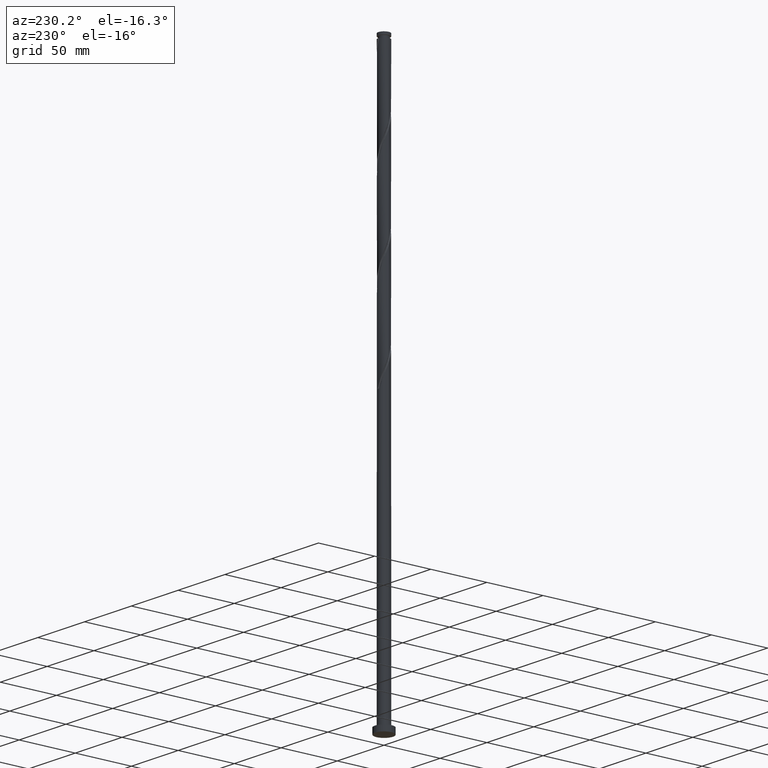
[diagram: clean part render]
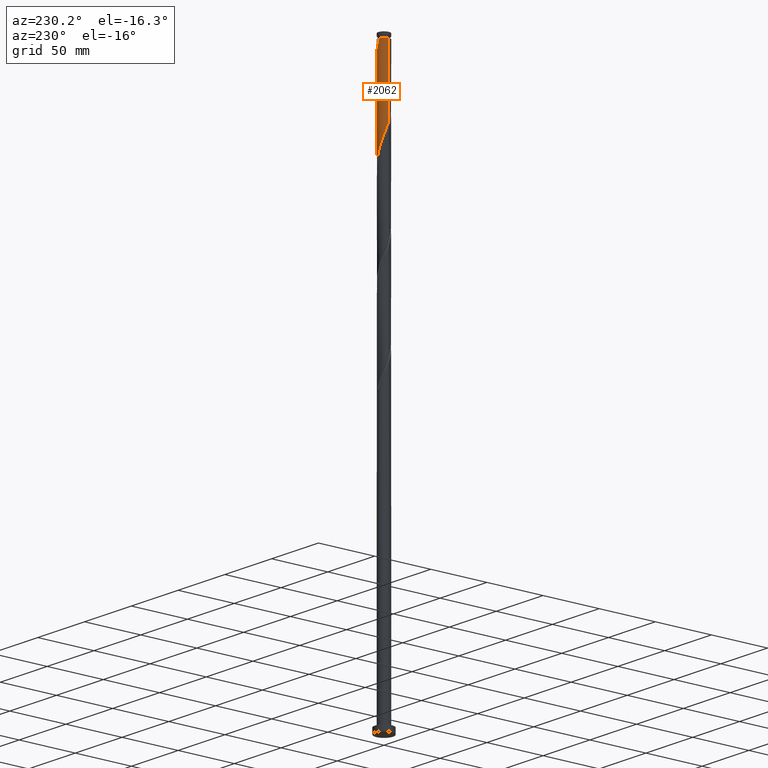
[diagram: same view with one face highlighted and labeled with its STEP entity id]
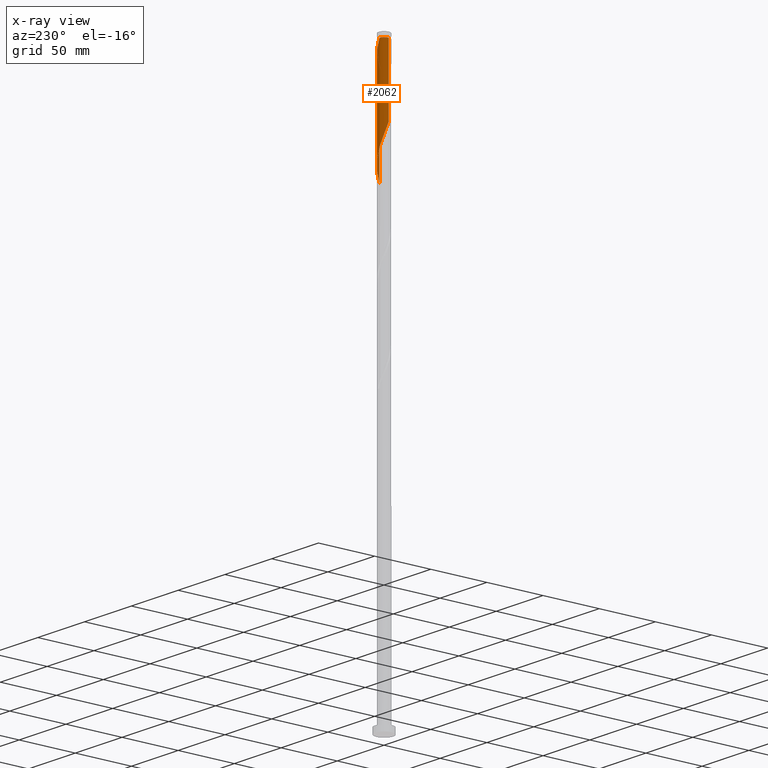
[diagram: x-ray of the same camera — body ghosted, the highlighted face saturated]
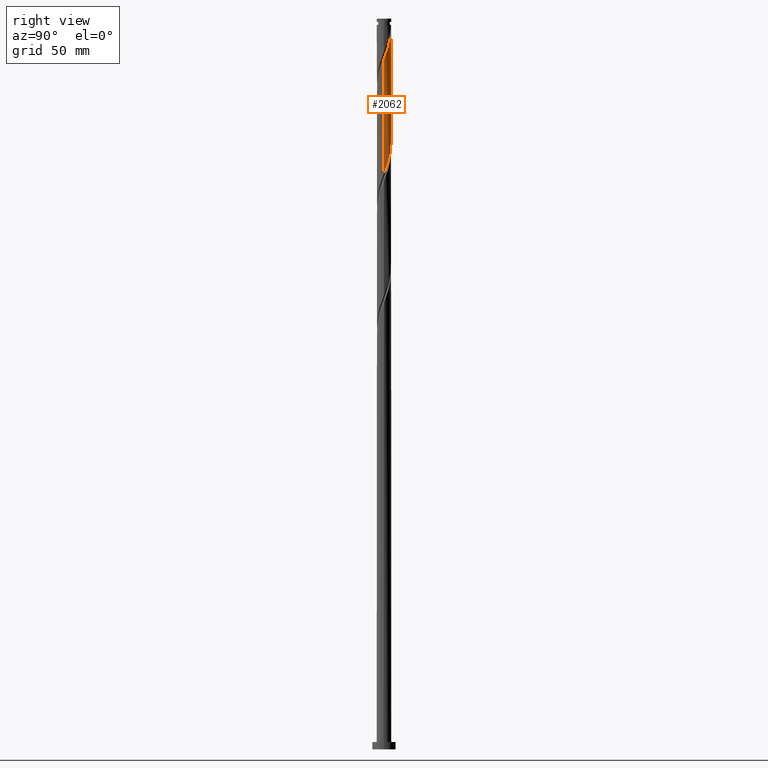
[diagram: same view with one face highlighted and labeled with its STEP entity id]
A machine part, auxiliary view. The second image highlights one B-rep face of the part: STEP entity #2062.
The next image is the same camera in x-ray: the body ghosted, the highlighted face saturated — about 0% of this face is hidden behind the body in this view.
A second angle (right view) of the same face is appended — the face is thin or edge-on in the first view.
In plain terms, the highlighted cylindrical surface (edge-blend (fillet) strip) has radius 5 mm, axis along (-0, -0, -1).
Its self-contained STEP definition (entity closure, byte-faithful):
#8 = DIRECTION ( 'NONE',  ( -0.000000000000000000, -0.000000000000000000, -1.000000000000000000 ) ) ;
#17 = CARTESIAN_POINT ( 'NONE',  ( 2.761260863840569790, 4.168385591787605371, 485.3114236022321393 ) ) ;
#41 = CARTESIAN_POINT ( 'NONE',  ( -4.999960293482964779, 0.01992645462128600845, 435.8322569355656810 ) ) ;
#58 = EDGE_CURVE ( 'NONE', #672, #336, #2003, .T. ) ;
#113 = CARTESIAN_POINT ( 'NONE',  ( -3.521415697997567040, 3.549595960373002068, 425.4155902688989386 ) ) ;
#143 = CARTESIAN_POINT ( 'NONE',  ( 4.146244501713201913, 2.794397346837617313, 480.1030902688988249 ) ) ;
#175 = CARTESIAN_POINT ( 'NONE',  ( 3.171811010509511863, 3.896425134272734514, 484.0093402688988817 ) ) ;
#190 = CARTESIAN_POINT ( 'NONE',  ( -4.997997709003380251, 0.5123795606565213490, 434.5301736022321393 ) ) ;
#232 = VERTEX_POINT ( 'NONE', #1247 ) ;
#245 = CARTESIAN_POINT ( 'NONE',  ( 1.477595313556730350, 4.802002290996620459, 411.0926736022322530 ) ) ;
#254 = CARTESIAN_POINT ( 'NONE',  ( 4.999960293482969220, 0.01992645462128285472, 472.2905902688987680 ) ) ;
#262 = CARTESIAN_POINT ( 'NONE',  ( 3.202766786473273175, 3.871020385485623549, 405.8843402688988249 ) ) ;
#264 = CARTESIAN_POINT ( 'NONE',  ( 5.000000000000002665, 2.143404433510405067E-15, 394.2182872468958408 ) ) ;
#336 = VERTEX_POINT ( 'NONE', #264 ) ;
#366 = ORIENTED_EDGE ( 'NONE', *, *, #1055, .F. ) ;
#368 = CARTESIAN_POINT ( 'NONE',  ( 5.000000000000006217, 2.277600189347564441E-15, 472.2378932909019227 ) ) ;
#409 = ORIENTED_EDGE ( 'NONE', *, *, #738, .F. ) ;
#419 = CARTESIAN_POINT ( 'NONE',  ( 2.794397346837616869, 4.146244501713196584, 407.1864236022322530 ) ) ;
#428 = CARTESIAN_POINT ( 'NONE',  ( 1.931811610379345234, 4.611735454468695927, 409.7905902688989954 ) ) ;
#440 = CARTESIAN_POINT ( 'NONE',  ( 4.907774916897412076, 0.9559002903402679108, 396.7697569355657379 ) ) ;
#463 = AXIS2_PLACEMENT_3D ( 'NONE', #1459, #8, #1301 ) ;
#469 = CARTESIAN_POINT ( 'NONE',  ( -0.9949874371066255163, 4.900000000000005684, 495.7280902688987112 ) ) ;
#513 = CARTESIAN_POINT ( 'NONE',  ( -5.000000000000002665, -1.548842681954040460E-15, 435.8849539135625832 ) ) ;
#537 = DIRECTION ( 'NONE',  ( -0.000000000000000000, -0.000000000000000000, -1.000000000000000000 ) ) ;
#543 = ORIENTED_EDGE ( 'NONE', *, *, #1122, .T. ) ;
#568 = CARTESIAN_POINT ( 'NONE',  ( 4.900000000000005684, 0.9949874371066259604, 474.8947569355654537 ) ) ;
#585 = CARTESIAN_POINT ( 'NONE',  ( 3.549595960373001180, 3.521415697997567040, 404.5822569355656242 ) ) ;
#594 = CARTESIAN_POINT ( 'NONE',  ( -3.171811010509507867, 3.896425134272730073, 424.1135069355655673 ) ) ;
#604 = CARTESIAN_POINT ( 'NONE',  ( -1.439273929266583041, 4.813626955832280174, 418.9051736022323098 ) ) ;
#623 = CARTESIAN_POINT ( 'NONE',  ( -0.5123795606565361149, 4.997997709003384692, 494.4260069355656242 ) ) ;
#653 = CYLINDRICAL_SURFACE ( 'NONE', #1589, 5.000000000000000888 ) ;
#672 = VERTEX_POINT ( 'NONE', #368 ) ;
#674 = CARTESIAN_POINT ( 'NONE',  ( -4.802002290996619571, 1.477595313556731682, 431.9260069355655105 ) ) ;
#727 = CARTESIAN_POINT ( 'NONE',  ( 2.386027907201954790, 4.421468617940769619, 408.4885069355655673 ) ) ;
#738 = EDGE_CURVE ( 'NONE', #1483, #336, #756, .T. ) ;
#741 = CARTESIAN_POINT ( 'NONE',  ( -5.000000000000000888, 0.000000000000000000, 500.0000000000000000 ) ) ;
#745 = CARTESIAN_POINT ( 'NONE',  ( -4.146244501713199249, 2.794397346837614204, 428.0197569355657379 ) ) ;
#756 =( BOUNDED_CURVE ( )  B_SPLINE_CURVE ( 2, ( #513, #1863, #41, #190, #831, #674, #1485, #1324, #745, #1722, #113, #594, #1227, #1246, #1875, #604, #1713, #766, #2058, #886, #1082, #245, #428, #727, #419, #262, #585, #1891, #1417, #757, #2049, #1568, #440, #1737, #1235 ),
 .UNSPECIFIED., .F., .T. ) 
 B_SPLINE_CURVE_WITH_KNOTS ( ( 3, 2, 2, 2, 2, 2, 2, 2, 2, 2, 2, 2, 2, 2, 2, 2, 2, 3 ),
 ( 0.4295286902180869282, 0.4296875000000000000, 0.4375000000000000000, 0.4453125000000000000, 0.4531250000000000000, 0.4609375000000000000, 0.4687500000000000000, 0.4765625000000000000, 0.4843750000000000000, 0.4921875000000000000, 0.5000000000000000000, 0.5078125000000000000, 0.5156250000000000000, 0.5234375000000000000, 0.5312500000000000000, 0.5390625000000000000, 0.5468750000000000000, 0.5545286902180870392 ),
 .UNSPECIFIED. ) 
 CURVE ( )  GEOMETRIC_REPRESENTATION_ITEM ( )  RATIONAL_B_SPLINE_CURVE ( ( 0.9089165573359504480, 0.9090019243628553181, 0.9090909090909472523, 0.9047133878838534704, 0.9090909090909472523, 0.9047133878838534704, 0.9090909090909472523, 0.9047133878838534704, 0.9090909090909472523, 0.9047133878838534704, 0.9090909090909472523, 0.9047133878838534704, 0.9090909090909472523, 0.9047133878838534704, 0.9090909090909472523, 0.9047133878838534704, 0.9090909090909472523, 0.9047133878838534704, 0.9090909090909472523, 0.9047133878838534704, 0.9090909090909472523, 0.9047133878838534704, 0.9090909090909472523, 0.9047133878838534704, 0.9090909090909472523, 0.9047133878838534704, 0.9090909090909472523, 0.9047133878838534704, 0.9090909090909472523, 0.9047133878838534704, 0.9090909090909472523, 0.9047133878838534704, 0.9090909090909472523, 0.9048023726119454047, 0.9089165573359504480 ) ) 
 REPRESENTATION_ITEM ( '' )  );
#757 = CARTESIAN_POINT ( 'NONE',  ( 4.440346049302474007, 2.350710717171620168, 400.6760069355655673 ) ) ;
#766 = CARTESIAN_POINT ( 'NONE',  ( -0.4725266514139499496, 5.001922877962546643, 416.3010069355655105 ) ) ;
#786 = CARTESIAN_POINT ( 'NONE',  ( 3.871020385485630655, 3.202766786473274951, 481.4051736022321961 ) ) ;
#817 = CARTESIAN_POINT ( 'NONE',  ( 0.4725266514139521701, 5.001922877962551972, 491.8218402688988817 ) ) ;
#831 = CARTESIAN_POINT ( 'NONE',  ( -4.900000000000001243, 0.9949874371066268486, 433.2280902688989386 ) ) ;
#835 = CIRCLE ( 'NONE', #463, 4.999999999999952927 ) ;
#841 = ORIENTED_EDGE ( 'NONE', *, *, #58, .T. ) ;
#886 = CARTESIAN_POINT ( 'NONE',  ( 0.5123795606565214600, 4.997997709003380251, 413.6968402688988817 ) ) ;
#895 = CARTESIAN_POINT ( 'NONE',  ( 4.997997709003384692, 0.5123795606565222371, 473.5926736022321393 ) ) ;
#962 = DIRECTION ( 'NONE',  ( -0.000000000000000000, -0.000000000000000000, -1.000000000000000000 ) ) ;
#970 = CARTESIAN_POINT ( 'NONE',  ( 1.439273929266587038, 4.813626955832283727, 489.2176736022321393 ) ) ;
#1000 = VECTOR ( 'NONE', #537, 1000.000000000000000 ) ;
#1055 = EDGE_CURVE ( 'NONE', #672, #232, #1765, .T. ) ;
#1082 = CARTESIAN_POINT ( 'NONE',  ( 0.9949874371066277368, 4.900000000000001243, 412.3947569355656242 ) ) ;
#1122 = EDGE_CURVE ( 'NONE', #2048, #232, #835, .T. ) ;
#1153 = CARTESIAN_POINT ( 'NONE',  ( 0.000000000000000000, 0.000000000000000000, 500.0000000000000000 ) ) ;
#1186 = CARTESIAN_POINT ( 'NONE',  ( 5.000000000000000888, 6.123233995736767268E-16, 500.0000000000000000 ) ) ;
#1219 = CARTESIAN_POINT ( 'NONE',  ( 4.611735454468701256, 1.931811610379344124, 477.4989236022320824 ) ) ;
#1227 = CARTESIAN_POINT ( 'NONE',  ( -2.761260863840565349, 4.168385591787602706, 422.8114236022323098 ) ) ;
#1235 = CARTESIAN_POINT ( 'NONE',  ( 5.000000000000002665, 2.143404433510405067E-15, 394.2182872468958408 ) ) ;
#1246 = CARTESIAN_POINT ( 'NONE',  ( -2.350710717171619279, 4.440346049302474007, 421.5093402688988817 ) ) ;
#1247 = CARTESIAN_POINT ( 'NONE',  ( -0.9949874371066255163, 4.900000000000004796, 495.7280902688987112 ) ) ;
#1249 = LINE ( 'NONE', #741, #1727 ) ;
#1301 = DIRECTION ( 'NONE',  ( -1.000000000000000000, 0.000000000000000000, 0.000000000000000000 ) ) ;
#1324 = CARTESIAN_POINT ( 'NONE',  ( -4.421468617940769619, 2.386027907201954346, 429.3218402688989386 ) ) ;
#1381 = CARTESIAN_POINT ( 'NONE',  ( 5.000000000000006217, 2.277600189347564441E-15, 472.2378932909019227 ) ) ;
#1415 = CARTESIAN_POINT ( 'NONE',  ( -5.000000000000002665, -1.548842681954040657E-15, 435.8849539135625832 ) ) ;
#1417 = CARTESIAN_POINT ( 'NONE',  ( 4.168385591787602706, 2.761260863840563573, 401.9780902688989954 ) ) ;
#1437 = CARTESIAN_POINT ( 'NONE',  ( -0.01992645462128253553, 4.999960293482969220, 493.1239236022320824 ) ) ;
#1459 = CARTESIAN_POINT ( 'NONE',  ( 0.000000000000000000, 0.000000000000000000, 495.7280902688988817 ) ) ;
#1483 = VERTEX_POINT ( 'NONE', #1415 ) ;
#1485 = CARTESIAN_POINT ( 'NONE',  ( -4.611735454468697704, 1.931811610379343014, 430.6239236022323098 ) ) ;
#1548 = CARTESIAN_POINT ( 'NONE',  ( 4.802002290996628453, 1.477595313556729684, 476.1968402688988249 ) ) ;
#1568 = CARTESIAN_POINT ( 'NONE',  ( 4.813626955832278398, 1.439273929266582597, 398.0718402688988817 ) ) ;
#1589 = AXIS2_PLACEMENT_3D ( 'NONE', #1153, #962, #1639 ) ;
#1621 = CARTESIAN_POINT ( 'NONE',  ( 3.521415697997572369, 3.549595960373003400, 482.7072569355655105 ) ) ;
#1634 = CARTESIAN_POINT ( 'NONE',  ( 2.350710717171625053, 4.440346049302477560, 486.6135069355655105 ) ) ;
#1639 = DIRECTION ( 'NONE',  ( -1.000000000000000000, 0.000000000000000000, 0.000000000000000000 ) ) ;
#1713 = CARTESIAN_POINT ( 'NONE',  ( -0.9559002903402668005, 4.907774916897412965, 417.6030902688989386 ) ) ;
#1722 = CARTESIAN_POINT ( 'NONE',  ( -3.871020385485624438, 3.202766786473272731, 426.7176736022321961 ) ) ;
#1727 = VECTOR ( 'NONE', #2082, 1000.000000000000000 ) ;
#1737 = CARTESIAN_POINT ( 'NONE',  ( 4.999999999999999112, 0.4823990746449133282, 395.4942673523116810 ) ) ;
#1765 =( BOUNDED_CURVE ( )  B_SPLINE_CURVE ( 2, ( #1381, #2031, #254, #895, #568, #1548, #1219, #1884, #143, #786, #1621, #175, #17, #1634, #2078, #970, #2088, #817, #1437, #623, #469 ),
 .UNSPECIFIED., .F., .T. ) 
 B_SPLINE_CURVE_WITH_KNOTS ( ( 3, 2, 2, 2, 2, 2, 2, 2, 2, 2, 3 ),
 ( 0.6795286902180875943, 0.6796875000000000000, 0.6875000000000000000, 0.6953125000000000000, 0.7031250000000001110, 0.7109375000000001110, 0.7187500000000001110, 0.7265625000000001110, 0.7343750000000002220, 0.7421875000000002220, 0.7500000000000002220 ),
 .UNSPECIFIED. ) 
 CURVE ( )  GEOMETRIC_REPRESENTATION_ITEM ( )  RATIONAL_B_SPLINE_CURVE ( ( 0.9089165573359565542, 0.9090019243628610912, 0.9090909090909526924, 0.9047133878838587995, 0.9090909090909526924, 0.9047133878838587995, 0.9090909090909526924, 0.9047133878838587995, 0.9090909090909526924, 0.9047133878838587995, 0.9090909090909526924, 0.9047133878838587995, 0.9090909090909526924, 0.9047133878838587995, 0.9090909090909526924, 0.9047133878838587995, 0.9090909090909526924, 0.9047133878838587995, 0.9090909090909526924, 0.9047133878838586885, 0.9090909090909528034 ) ) 
 REPRESENTATION_ITEM ( '' )  );
#1780 = EDGE_LOOP ( 'NONE', ( #366, #841, #409, #2089, #543 ) ) ;
#1785 = FACE_OUTER_BOUND ( 'NONE', #1780, .T. ) ;
#1824 = EDGE_CURVE ( 'NONE', #2048, #1483, #1249, .T. ) ;
#1863 = CARTESIAN_POINT ( 'NONE',  ( -5.000000000000001776, 0.009963266871290878124, 435.8586003590451696 ) ) ;
#1875 = CARTESIAN_POINT ( 'NONE',  ( -1.894992323219101049, 4.626986502567377535, 420.2072569355656242 ) ) ;
#1884 = CARTESIAN_POINT ( 'NONE',  ( 4.421468617940776724, 2.386027907201955234, 478.8010069355655105 ) ) ;
#1891 = CARTESIAN_POINT ( 'NONE',  ( 3.896425134272730961, 3.171811010509505646, 403.2801736022323098 ) ) ;
#2003 = LINE ( 'NONE', #1186, #1000 ) ;
#2031 = CARTESIAN_POINT ( 'NONE',  ( 5.000000000000007994, 0.009963266871329526028, 472.2642468454191658 ) ) ;
#2048 = VERTEX_POINT ( 'NONE', #2093 ) ;
#2049 = CARTESIAN_POINT ( 'NONE',  ( 4.626986502567378423, 1.894992323219099717, 399.3739236022323666 ) ) ;
#2058 = CARTESIAN_POINT ( 'NONE',  ( 0.01992645462128569619, 4.999960293482964779, 414.9989236022323098 ) ) ;
#2062 = ADVANCED_FACE ( 'NONE', ( #1785 ), #653, .T. ) ;
#2078 = CARTESIAN_POINT ( 'NONE',  ( 1.894992323219103492, 4.626986502567381088, 487.9155902688988249 ) ) ;
#2082 = DIRECTION ( 'NONE',  ( -0.000000000000000000, -0.000000000000000000, -1.000000000000000000 ) ) ;
#2088 = CARTESIAN_POINT ( 'NONE',  ( 0.9559002903402716855, 4.907774916897417405, 490.5197569355654537 ) ) ;
#2089 = ORIENTED_EDGE ( 'NONE', *, *, #1824, .F. ) ;
#2093 = CARTESIAN_POINT ( 'NONE',  ( -4.999999999999952927, 0.000000000000000000, 495.7280902688988817 ) ) ;